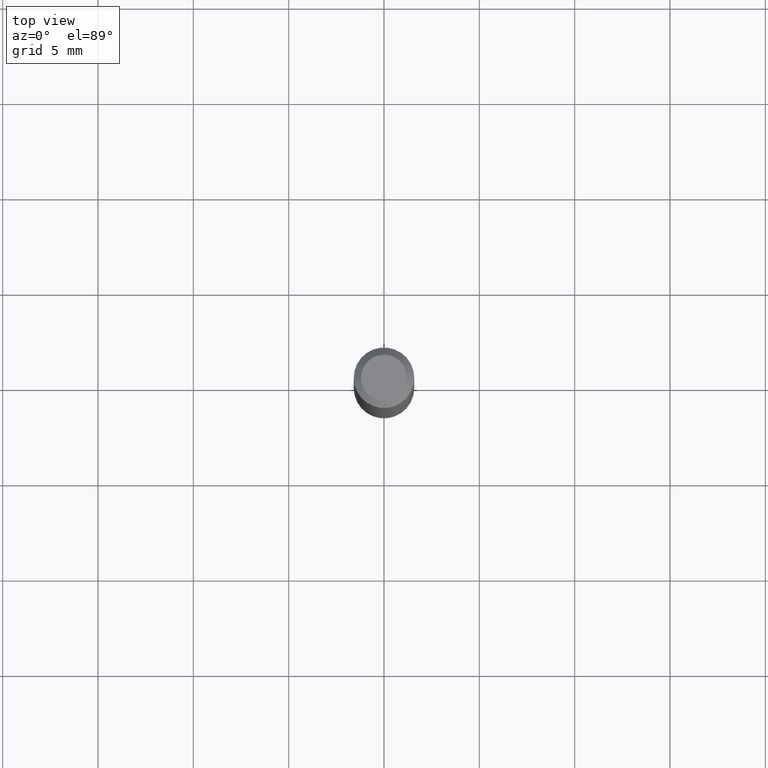
[diagram: clean part render]
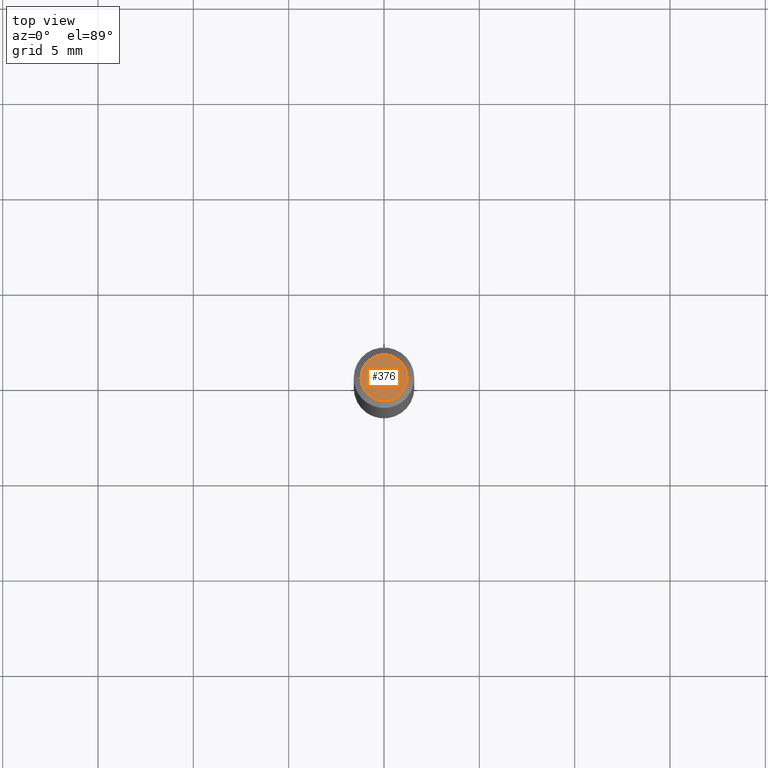
[diagram: same view with one face highlighted and labeled with its STEP entity id]
A machine part, top view. The second image highlights one B-rep face of the part: STEP entity #376.
In plain terms, the highlighted planar face has unit normal (0, -0, -1).
Its self-contained STEP definition (entity closure, byte-faithful):
#1 = ORIENTED_EDGE ( 'NONE', *, *, #238, .T. ) ;
#6 = CARTESIAN_POINT ( 'NONE',  ( 3.316907271900976096E-16, 0.04749999999999999362, -2.357791577261395620E-17 ) ) ;
#27 = AXIS2_PLACEMENT_3D ( 'NONE', #336, #117, #186 ) ;
#34 = CARTESIAN_POINT ( 'NONE',  ( 0.04749999999999999362, -4.035134999187574186E-16, 2.845348956448734443E-16 ) ) ;
#99 = CIRCLE ( 'NONE', #27, 0.04749999999999999362 ) ;
#108 = AXIS2_PLACEMENT_3D ( 'NONE', #231, #422, #195 ) ;
#117 = DIRECTION ( 'NONE',  ( -2.445468806185136597E-29, 3.491481338843145583E-15, 1.000000000000000000 ) ) ;
#119 = EDGE_CURVE ( 'NONE', #464, #209, #455, .T. ) ;
#130 = ORIENTED_EDGE ( 'NONE', *, *, #119, .T. ) ;
#135 = FACE_OUTER_BOUND ( 'NONE', #430, .T. ) ;
#155 = AXIS2_PLACEMENT_3D ( 'NONE', #6, #211, #294 ) ;
#186 = DIRECTION ( 'NONE',  ( 1.000000000000000000, -6.982962677686267499E-15, 4.852736867747366768E-29 ) ) ;
#195 = DIRECTION ( 'NONE',  ( 1.000000000000000000, -6.982962677686267499E-15, 4.852736867747366768E-29 ) ) ;
#209 = VERTEX_POINT ( 'NONE', #466 ) ;
#211 = DIRECTION ( 'NONE',  ( 2.438088387897960049E-29, -3.491481338843145188E-15, -1.000000000000000000 ) ) ;
#231 = CARTESIAN_POINT ( 'NONE',  ( -6.958212115706747638E-45, 9.934482783937485755E-31, 2.845348956448708805E-16 ) ) ;
#238 = EDGE_CURVE ( 'NONE', #209, #464, #99, .T. ) ;
#294 = DIRECTION ( 'NONE',  ( -1.000000000000000000, 6.982962677686265922E-15, -4.876176775795935793E-29 ) ) ;
#336 = CARTESIAN_POINT ( 'NONE',  ( -6.958212115706747638E-45, 9.934482783937485755E-31, 2.845348956448708805E-16 ) ) ;
#376 = ADVANCED_FACE ( 'NONE', ( #135 ), #433, .F. ) ;
#422 = DIRECTION ( 'NONE',  ( -2.445468806185136597E-29, 3.491481338843145583E-15, 1.000000000000000000 ) ) ;
#430 = EDGE_LOOP ( 'NONE', ( #1, #130 ) ) ;
#433 = PLANE ( 'NONE',  #155 ) ;
#455 = CIRCLE ( 'NONE', #108, 0.04749999999999999362 ) ;
#464 = VERTEX_POINT ( 'NONE', #34 ) ;
#466 = CARTESIAN_POINT ( 'NONE',  ( -0.04749999999999999362, 3.578768372314216422E-16, 2.845348956448684646E-16 ) ) ;